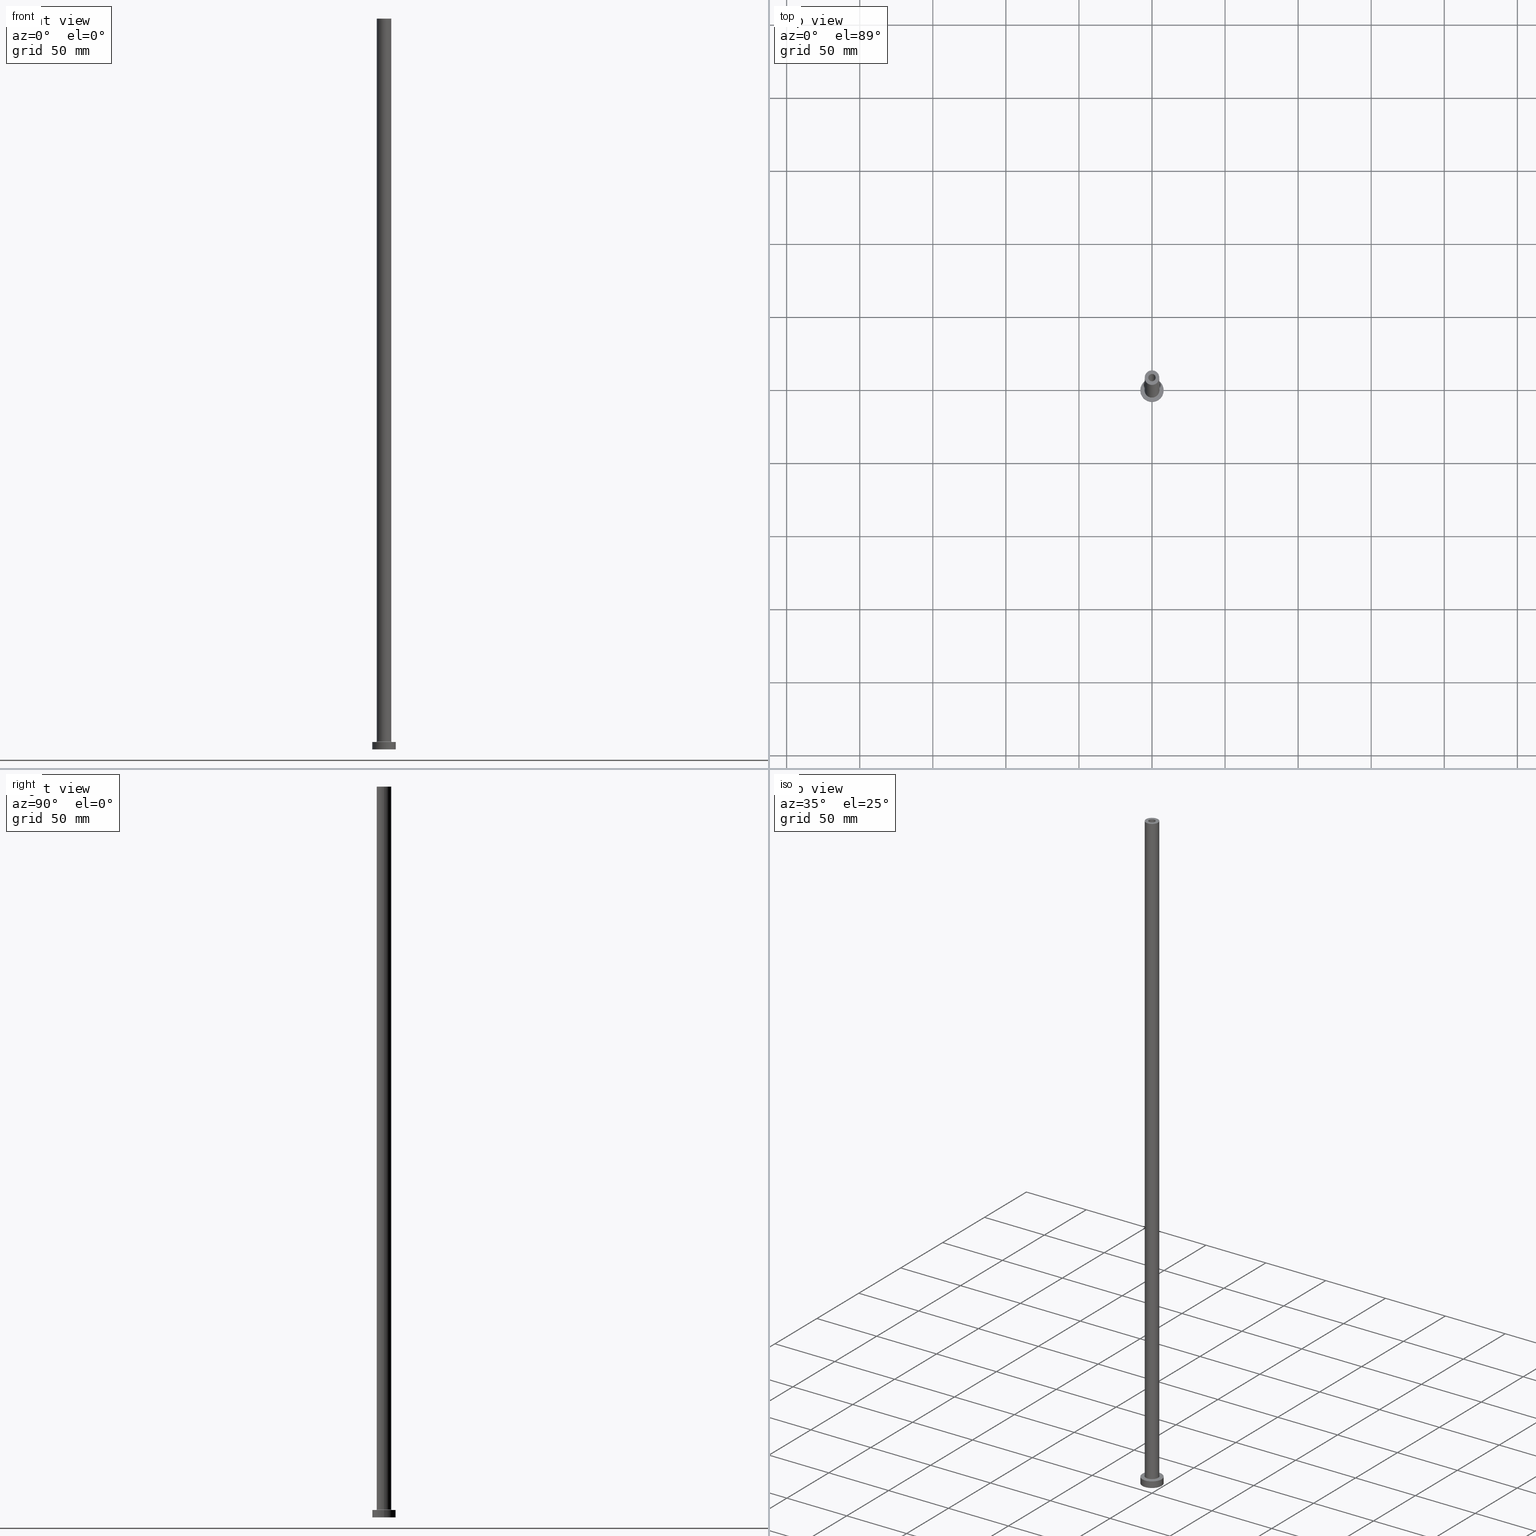
[diagram: canonical four-view strip — front | top / right | iso, engineering-drawing reading convention]
A machine part, canonical four-view strip (front | top / right | iso — engineering-drawing reading convention). The complete STEP part file that produces these views, byte-faithful:
ISO-10303-21;
HEADER;
FILE_DESCRIPTION (( 'STEP AP203' ),
    '1' );
FILE_NAME ('f1df.STEP',
    '2023-02-13T16:57:33',
    ( '' ),
    ( '' ),
    'SwSTEP 2.0',
    'SolidWorks 2019',
    '' );
FILE_SCHEMA (( 'CONFIG_CONTROL_DESIGN' ));
ENDSEC;

DATA;
#1 = CARTESIAN_POINT ( 'NONE',  ( 2.500000000000000000, 3.061616997868382648E-16, 500.0000000000000000 ) ) ;
#2 = VECTOR ( 'NONE', #419, 1000.000000000000000 ) ;
#3 = CARTESIAN_POINT ( 'NONE',  ( 0.000000000000000000, 0.000000000000000000, 0.000000000000000000 ) ) ;
#4 = LOCAL_TIME ( 17, 57, 33.00000000000000000, #62 ) ;
#5 = LINE ( 'NONE', #420, #336 ) ;
#6 = CARTESIAN_POINT ( 'NONE',  ( 0.000000000000000000, 0.000000000000000000, 5.500000000000005329 ) ) ;
#7 = DIRECTION ( 'NONE',  ( 0.000000000000000000, 0.000000000000000000, 1.000000000000000000 ) ) ;
#8 =( NAMED_UNIT ( * ) PLANE_ANGLE_UNIT ( ) SI_UNIT ( $, .RADIAN. ) );
#9 = TOROIDAL_SURFACE ( 'NONE', #208, 5.500000000000000000, 0.5000000000000000000 ) ;
#10 = CC_DESIGN_PERSON_AND_ORGANIZATION_ASSIGNMENT ( #229, #260, ( #411 ) ) ;
#11 = DIRECTION ( 'NONE',  ( 0.000000000000000000, 0.000000000000000000, 1.000000000000000000 ) ) ;
#12 = COORDINATED_UNIVERSAL_TIME_OFFSET ( 1, 0, .AHEAD. ) ;
#13 = VERTEX_POINT ( 'NONE', #1 ) ;
#14 = CIRCLE ( 'NONE', #326, 5.000000000000000000 ) ;
#15 = VERTEX_POINT ( 'NONE', #176 ) ;
#16 = EDGE_LOOP ( 'NONE', ( #294, #287 ) ) ;
#17 = ORIENTED_EDGE ( 'NONE', *, *, #68, .T. ) ;
#18 = VERTEX_POINT ( 'NONE', #275 ) ;
#19 = DIRECTION ( 'NONE',  ( -0.000000000000000000, -0.000000000000000000, -1.000000000000000000 ) ) ;
#20 = CARTESIAN_POINT ( 'NONE',  ( 0.000000000000000000, 0.000000000000000000, 462.4953318805773961 ) ) ;
#21 = CARTESIAN_POINT ( 'NONE',  ( 0.000000000000000000, 0.000000000000000000, 500.0000000000000000 ) ) ;
#22 = APPROVAL_STATUS ( 'not_yet_approved' ) ;
#23 = EDGE_CURVE ( 'NONE', #48, #125, #61, .T. ) ;
#24 = CARTESIAN_POINT ( 'NONE',  ( 2.649999999999999911, 3.245314017740485962E-16, 455.0000000000000000 ) ) ;
#25 = FACE_OUTER_BOUND ( 'NONE', #375, .T. ) ;
#26 = LOCAL_TIME ( 17, 57, 33.00000000000000000, #12 ) ;
#27 = EDGE_CURVE ( 'NONE', #158, #150, #88, .T. ) ;
#28 = DIRECTION ( 'NONE',  ( 1.000000000000000000, 0.000000000000000000, 0.000000000000000000 ) ) ;
#29 = EDGE_CURVE ( 'NONE', #150, #158, #147, .T. ) ;
#30 = LINE ( 'NONE', #425, #201 ) ;
#31 = ORIENTED_EDGE ( 'NONE', *, *, #166, .F. ) ;
#32 = FACE_OUTER_BOUND ( 'NONE', #457, .T. ) ;
#33 =( NAMED_UNIT ( * ) SI_UNIT ( $, .STERADIAN. ) SOLID_ANGLE_UNIT ( ) );
#34 = CARTESIAN_POINT ( 'NONE',  ( 0.000000000000000000, 0.000000000000000000, 455.0000000000000000 ) ) ;
#35 = CARTESIAN_POINT ( 'NONE',  ( 0.000000000000000000, 0.000000000000000000, 5.500000000000005329 ) ) ;
#36 = FACE_OUTER_BOUND ( 'NONE', #310, .T. ) ;
#37 = ORIENTED_EDGE ( 'NONE', *, *, #216, .F. ) ;
#38 = AXIS2_PLACEMENT_3D ( 'NONE', #103, #246, #212 ) ;
#39 = APPROVAL_PERSON_ORGANIZATION ( #342, #427, #231 ) ;
#40 = DIRECTION ( 'NONE',  ( 1.000000000000000000, 0.000000000000000000, 0.000000000000000000 ) ) ;
#41 = PERSON_AND_ORGANIZATION ( #257, #214 ) ;
#42 = DIRECTION ( 'NONE',  ( 1.000000000000000000, 0.000000000000000000, 0.000000000000000000 ) ) ;
#43 = PERSON_AND_ORGANIZATION_ROLE ( 'creator' ) ;
#44 = VERTEX_POINT ( 'NONE', #75 ) ;
#45 = EDGE_LOOP ( 'NONE', ( #224, #334 ) ) ;
#46 = CARTESIAN_POINT ( 'NONE',  ( 2.500000000000000000, 3.061616997868382648E-16, 455.0000000000000000 ) ) ;
#47 = PERSON_AND_ORGANIZATION ( #257, #214 ) ;
#48 = VERTEX_POINT ( 'NONE', #140 ) ;
#49 = AXIS2_PLACEMENT_3D ( 'NONE', #280, #319, #355 ) ;
#50 = APPROVAL ( #113, 'NEUR�EN�' ) ;
#51 = ORIENTED_EDGE ( 'NONE', *, *, #407, .T. ) ;
#52 = DIRECTION ( 'NONE',  ( 1.000000000000000000, 0.000000000000000000, 0.000000000000000000 ) ) ;
#53 = ORIENTED_EDGE ( 'NONE', *, *, #68, .F. ) ;
#54 = ORIENTED_EDGE ( 'NONE', *, *, #193, .T. ) ;
#55 = CARTESIAN_POINT ( 'NONE',  ( -8.000000000000000000, 0.000000000000000000, 5.000000000000000000 ) ) ;
#56 = DIRECTION ( 'NONE',  ( -1.000000000000000000, 0.000000000000000000, 0.000000000000000000 ) ) ;
#57 = CALENDAR_DATE ( 2023, 13, 2 ) ;
#58 = CARTESIAN_POINT ( 'NONE',  ( 0.000000000000000000, 0.000000000000000000, 500.0000000000000000 ) ) ;
#59 = AXIS2_PLACEMENT_3D ( 'NONE', #379, #340, #305 ) ;
#60 = CALENDAR_DATE ( 2023, 13, 2 ) ;
#61 = CIRCLE ( 'NONE', #283, 5.500000000000000000 ) ;
#62 = COORDINATED_UNIVERSAL_TIME_OFFSET ( 1, 0, .AHEAD. ) ;
#63 = DATE_AND_TIME ( #57, #4 ) ;
#64 = AXIS2_PLACEMENT_3D ( 'NONE', #21, #304, #163 ) ;
#65 = CC_DESIGN_PERSON_AND_ORGANIZATION_ASSIGNMENT ( #333, #357, ( #84 ) ) ;
#66 =( GEOMETRIC_REPRESENTATION_CONTEXT ( 3 ) GLOBAL_UNCERTAINTY_ASSIGNED_CONTEXT ( ( #309 ) ) GLOBAL_UNIT_ASSIGNED_CONTEXT ( ( #349, #8, #33 ) ) REPRESENTATION_CONTEXT ( 'NONE', 'WORKASPACE' ) );
#67 = DIRECTION ( 'NONE',  ( -1.000000000000000000, 0.000000000000000000, 0.000000000000000000 ) ) ;
#68 = EDGE_CURVE ( 'NONE', #44, #292, #314, .T. ) ;
#69 = ORIENTED_EDGE ( 'NONE', *, *, #384, .T. ) ;
#70 = DIRECTION ( 'NONE',  ( 0.000000000000000000, 0.000000000000000000, -1.000000000000000000 ) ) ;
#71 = DIRECTION ( 'NONE',  ( 1.000000000000000000, 0.000000000000000000, 0.000000000000000000 ) ) ;
#72 = ORIENTED_EDGE ( 'NONE', *, *, #190, .F. ) ;
#73 = CARTESIAN_POINT ( 'NONE',  ( -2.500000000000000000, 0.000000000000000000, 500.0000000000000000 ) ) ;
#74 = VERTEX_POINT ( 'NONE', #146 ) ;
#75 = CARTESIAN_POINT ( 'NONE',  ( 5.000000000000000000, 6.123233995736766282E-16, 5.500000000000005329 ) ) ;
#76 = AXIS2_PLACEMENT_3D ( 'NONE', #236, #104, #239 ) ;
#77 = CARTESIAN_POINT ( 'NONE',  ( 0.000000000000000000, 0.000000000000000000, 5.000000000000000000 ) ) ;
#78 = ORIENTED_EDGE ( 'NONE', *, *, #407, .F. ) ;
#79 = ORIENTED_EDGE ( 'NONE', *, *, #145, .F. ) ;
#80 = ADVANCED_FACE ( 'NONE', ( #238, #32 ), #281, .T. ) ;
#81 = ADVANCED_FACE ( 'NONE', ( #241, #213 ), #187, .F. ) ;
#82 = EDGE_LOOP ( 'NONE', ( #31, #363, #399, #378 ) ) ;
#83 = AXIS2_PLACEMENT_3D ( 'NONE', #92, #232, #346 ) ;
#84 = PRODUCT_DEFINITION_FORMATION_WITH_SPECIFIED_SOURCE ( 'LIBOVOLN�', '', #251, .NOT_KNOWN. ) ;
#85 = APPROVAL_ROLE ( '' ) ;
#86 = ORIENTED_EDGE ( 'NONE', *, *, #216, .T. ) ;
#87 = DIRECTION ( 'NONE',  ( 1.000000000000000000, 0.000000000000000000, -0.000000000000000000 ) ) ;
#88 = CIRCLE ( 'NONE', #389, 2.649999999999999911 ) ;
#89 = APPROVAL_DATE_TIME ( #338, #427 ) ;
#90 = CC_DESIGN_PERSON_AND_ORGANIZATION_ASSIGNMENT ( #410, #153, ( #251 ) ) ;
#91 = PERSON_AND_ORGANIZATION_ROLE ( 'design_supplier' ) ;
#92 = CARTESIAN_POINT ( 'NONE',  ( 0.000000000000000000, 0.000000000000000000, 5.000000000000000000 ) ) ;
#93 = ADVANCED_FACE ( 'NONE', ( #144 ), #9, .F. ) ;
#94 = DIRECTION ( 'NONE',  ( 1.000000000000000000, 0.000000000000000000, 0.000000000000000000 ) ) ;
#95 = ADVANCED_FACE ( 'NONE', ( #243 ), #180, .F. ) ;
#96 = VECTOR ( 'NONE', #359, 1000.000000000000000 ) ;
#97 = CC_DESIGN_SECURITY_CLASSIFICATION ( #411, ( #84 ) ) ;
#98 = DIRECTION ( 'NONE',  ( -0.000000000000000000, -0.000000000000000000, -1.000000000000000000 ) ) ;
#99 = ORIENTED_EDGE ( 'NONE', *, *, #134, .T. ) ;
#100 = ADVANCED_FACE ( 'NONE', ( #197 ), #259, .F. ) ;
#101 = AXIS2_PLACEMENT_3D ( 'NONE', #330, #228, #56 ) ;
#102 = CARTESIAN_POINT ( 'NONE',  ( 0.000000000000000000, 0.000000000000000000, 5.000000000000000000 ) ) ;
#103 = CARTESIAN_POINT ( 'NONE',  ( 0.000000000000000000, 0.000000000000000000, 0.000000000000000000 ) ) ;
#104 = DIRECTION ( 'NONE',  ( 0.000000000000000000, 0.000000000000000000, 1.000000000000000000 ) ) ;
#105 = LINE ( 'NONE', #274, #316 ) ;
#106 = APPROVAL_PERSON_ORGANIZATION ( #436, #460, #430 ) ;
#107 = DIRECTION ( 'NONE',  ( -0.000000000000000000, -0.000000000000000000, -1.000000000000000000 ) ) ;
#108 = PLANE ( 'NONE',  #422 ) ;
#109 = CARTESIAN_POINT ( 'NONE',  ( 0.000000000000000000, 0.000000000000000000, 455.0000000000000000 ) ) ;
#110 = PRODUCT_RELATED_PRODUCT_CATEGORY ( 'detail', '', ( #251 ) ) ;
#111 = LINE ( 'NONE', #181, #96 ) ;
#112 = CARTESIAN_POINT ( 'NONE',  ( 0.000000000000000000, 0.000000000000000000, 5.500000000000005329 ) ) ;
#113 = APPROVAL_STATUS ( 'not_yet_approved' ) ;
#114 = VERTEX_POINT ( 'NONE', #46 ) ;
#115 = ORIENTED_EDGE ( 'NONE', *, *, #226, .T. ) ;
#116 = CARTESIAN_POINT ( 'NONE',  ( 0.000000000000000000, 0.000000000000000000, 455.0000000000000000 ) ) ;
#117 = PRODUCT_DEFINITION_SHAPE ( 'NONE', 'NONE',  #444 ) ;
#118 = APPROVAL_DATE_TIME ( #248, #50 ) ;
#119 = ORIENTED_EDGE ( 'NONE', *, *, #193, .F. ) ;
#120 = AXIS2_PLACEMENT_3D ( 'NONE', #34, #182, #321 ) ;
#121 = APPLICATION_PROTOCOL_DEFINITION ( 'international standard', 'config_control_design', 1994, #131 ) ;
#122 = ORIENTED_EDGE ( 'NONE', *, *, #29, .T. ) ;
#123 = LOCAL_TIME ( 17, 57, 33.00000000000000000, #130 ) ;
#124 = COORDINATED_UNIVERSAL_TIME_OFFSET ( 1, 0, .AHEAD. ) ;
#125 = VERTEX_POINT ( 'NONE', #443 ) ;
#126 = CARTESIAN_POINT ( 'NONE',  ( -5.500000000000000000, 6.735557395310442023E-16, 5.500000000000005329 ) ) ;
#127 = DIRECTION ( 'NONE',  ( -1.000000000000000000, 0.000000000000000000, 0.000000000000000000 ) ) ;
#128 = AXIS2_PLACEMENT_3D ( 'NONE', #325, #351, #94 ) ;
#129 = AXIS2_PLACEMENT_3D ( 'NONE', #454, #98, #67 ) ;
#130 = COORDINATED_UNIVERSAL_TIME_OFFSET ( 1, 0, .AHEAD. ) ;
#131 = APPLICATION_CONTEXT ( 'configuration controlled 3d designs of mechanical parts and assemblies' ) ;
#132 = DIRECTION ( 'NONE',  ( 1.000000000000000000, 0.000000000000000000, -0.000000000000000000 ) ) ;
#133 = CARTESIAN_POINT ( 'NONE',  ( 8.000000000000000000, 9.797174393178825657E-16, 5.000000000000000000 ) ) ;
#134 = EDGE_CURVE ( 'NONE', #292, #125, #418, .T. ) ;
#135 = AXIS2_PLACEMENT_3D ( 'NONE', #312, #141, #276 ) ;
#136 = CARTESIAN_POINT ( 'NONE',  ( -2.500000000000000000, 0.000000000000000000, 500.0000000000000000 ) ) ;
#137 = ADVANCED_BREP_SHAPE_REPRESENTATION ( 'f1df', ( #385, #428 ), #66 ) ;
#138 = CARTESIAN_POINT ( 'NONE',  ( 5.500000000000000000, 0.000000000000000000, 5.500000000000005329 ) ) ;
#139 = CARTESIAN_POINT ( 'NONE',  ( 8.000000000000000000, 9.797174393178825657E-16, 0.000000000000000000 ) ) ;
#140 = CARTESIAN_POINT ( 'NONE',  ( 5.500000000000000000, 0.000000000000000000, 5.000000000000002665 ) ) ;
#141 = DIRECTION ( 'NONE',  ( 0.000000000000000000, 0.000000000000000000, 1.000000000000000000 ) ) ;
#142 = CIRCLE ( 'NONE', #135, 2.500000000000000000 ) ;
#143 = LOCAL_TIME ( 17, 57, 33.00000000000000000, #225 ) ;
#144 = FACE_OUTER_BOUND ( 'NONE', #348, .T. ) ;
#145 = EDGE_CURVE ( 'NONE', #268, #114, #235, .T. ) ;
#146 = CARTESIAN_POINT ( 'NONE',  ( 2.649999999999999911, 3.245314017740485962E-16, 0.000000000000000000 ) ) ;
#147 = CIRCLE ( 'NONE', #345, 2.649999999999999911 ) ;
#148 = ORIENTED_EDGE ( 'NONE', *, *, #29, .F. ) ;
#149 = EDGE_CURVE ( 'NONE', #158, #18, #272, .T. ) ;
#150 = VERTEX_POINT ( 'NONE', #24 ) ;
#151 = AXIS2_PLACEMENT_3D ( 'NONE', #169, #19, #373 ) ;
#152 = DIRECTION ( 'NONE',  ( -1.000000000000000000, 0.000000000000000000, 0.000000000000000000 ) ) ;
#153 = PERSON_AND_ORGANIZATION_ROLE ( 'design_owner' ) ;
#154 = ORIENTED_EDGE ( 'NONE', *, *, #205, .T. ) ;
#155 = ADVANCED_FACE ( 'NONE', ( #441 ), #299, .F. ) ;
#156 = CALENDAR_DATE ( 2023, 13, 2 ) ;
#157 = EDGE_LOOP ( 'NONE', ( #437, #215, #54, #37 ) ) ;
#158 = VERTEX_POINT ( 'NONE', #447 ) ;
#159 = CIRCLE ( 'NONE', #128, 2.500000000000000000 ) ;
#160 = LINE ( 'NONE', #73, #341 ) ;
#161 = CIRCLE ( 'NONE', #271, 0.5000000000000004441 ) ;
#162 = DIRECTION ( 'NONE',  ( 0.000000000000000000, 0.000000000000000000, 1.000000000000000000 ) ) ;
#163 = DIRECTION ( 'NONE',  ( -1.000000000000000000, 0.000000000000000000, 0.000000000000000000 ) ) ;
#164 = FACE_OUTER_BOUND ( 'NONE', #234, .T. ) ;
#165 = DIRECTION ( 'NONE',  ( 0.000000000000000000, 0.000000000000000000, 1.000000000000000000 ) ) ;
#166 = EDGE_CURVE ( 'NONE', #370, #44, #339, .T. ) ;
#167 = CIRCLE ( 'NONE', #432, 8.000000000000000000 ) ;
#168 = CYLINDRICAL_SURFACE ( 'NONE', #83, 8.000000000000000000 ) ;
#169 = CARTESIAN_POINT ( 'NONE',  ( 0.000000000000000000, 0.000000000000000000, 500.0000000000000000 ) ) ;
#170 = ADVANCED_FACE ( 'NONE', ( #374 ), #168, .T. ) ;
#171 = DIRECTION ( 'NONE',  ( 1.000000000000000000, 0.000000000000000000, 0.000000000000000000 ) ) ;
#172 = DIRECTION ( 'NONE',  ( 1.000000000000000000, 0.000000000000000000, 0.000000000000000000 ) ) ;
#173 = AXIS2_PLACEMENT_3D ( 'NONE', #317, #397, #455 ) ;
#174 = CARTESIAN_POINT ( 'NONE',  ( 0.000000000000000000, 0.000000000000000000, 0.000000000000000000 ) ) ;
#175 = EDGE_LOOP ( 'NONE', ( #188, #99, #258, #409 ) ) ;
#176 = CARTESIAN_POINT ( 'NONE',  ( 8.000000000000000000, 9.797174393178825657E-16, 5.000000000000000000 ) ) ;
#177 = DESIGN_CONTEXT ( 'detailed design', #131, 'design' ) ;
#178 = EDGE_LOOP ( 'NONE', ( #366, #86 ) ) ;
#179 = EDGE_CURVE ( 'NONE', #223, #370, #380, .T. ) ;
#180 = CYLINDRICAL_SURFACE ( 'NONE', #101, 2.649999999999999911 ) ;
#181 = CARTESIAN_POINT ( 'NONE',  ( -8.000000000000000000, 0.000000000000000000, 5.000000000000000000 ) ) ;
#182 = DIRECTION ( 'NONE',  ( 0.000000000000000000, 0.000000000000000000, 1.000000000000000000 ) ) ;
#183 = TOROIDAL_SURFACE ( 'NONE', #293, 5.500000000000000000, 0.5000000000000000000 ) ;
#184 = CC_DESIGN_APPROVAL ( #427, ( #411 ) ) ;
#185 = ORIENTED_EDGE ( 'NONE', *, *, #453, .T. ) ;
#186 = CARTESIAN_POINT ( 'NONE',  ( 0.000000000000000000, 0.000000000000000000, 455.0000000000000000 ) ) ;
#187 = PLANE ( 'NONE',  #120 ) ;
#188 = ORIENTED_EDGE ( 'NONE', *, *, #337, .F. ) ;
#189 = DIRECTION ( 'NONE',  ( -1.000000000000000000, 1.224646799147351482E-16, 0.000000000000000000 ) ) ;
#190 = EDGE_CURVE ( 'NONE', #223, #292, #5, .T. ) ;
#191 = ORIENTED_EDGE ( 'NONE', *, *, #360, .F. ) ;
#192 = AXIS2_PLACEMENT_3D ( 'NONE', #77, #218, #358 ) ;
#193 = EDGE_CURVE ( 'NONE', #362, #268, #160, .T. ) ;
#194 = EDGE_LOOP ( 'NONE', ( #286, #148 ) ) ;
#195 = CC_DESIGN_DATE_AND_TIME_ASSIGNMENT ( #331, #285, ( #444 ) ) ;
#196 = ORIENTED_EDGE ( 'NONE', *, *, #134, .F. ) ;
#197 = FACE_OUTER_BOUND ( 'NONE', #290, .T. ) ;
#198 = SHAPE_DEFINITION_REPRESENTATION ( #117, #137 ) ;
#199 = FACE_BOUND ( 'NONE', #253, .T. ) ;
#200 = CIRCLE ( 'NONE', #59, 5.500000000000000000 ) ;
#201 = VECTOR ( 'NONE', #207, 1000.000000000000000 ) ;
#202 = AXIS2_PLACEMENT_3D ( 'NONE', #3, #165, #390 ) ;
#203 = CC_DESIGN_APPROVAL ( #50, ( #84 ) ) ;
#204 = DIRECTION ( 'NONE',  ( 0.000000000000000000, 0.000000000000000000, 1.000000000000000000 ) ) ;
#205 = EDGE_CURVE ( 'NONE', #74, #18, #421, .T. ) ;
#206 = CARTESIAN_POINT ( 'NONE',  ( -8.000000000000000000, 0.000000000000000000, 0.000000000000000000 ) ) ;
#207 = DIRECTION ( 'NONE',  ( 0.000000000000000000, 0.000000000000000000, -1.000000000000000000 ) ) ;
#208 = AXIS2_PLACEMENT_3D ( 'NONE', #112, #404, #350 ) ;
#209 = VECTOR ( 'NONE', #270, 1000.000000000000000 ) ;
#210 = ORIENTED_EDGE ( 'NONE', *, *, #273, .T. ) ;
#211 = DIRECTION ( 'NONE',  ( 1.000000000000000000, 0.000000000000000000, 0.000000000000000000 ) ) ;
#212 = DIRECTION ( 'NONE',  ( 1.000000000000000000, 0.000000000000000000, 0.000000000000000000 ) ) ;
#213 = FACE_OUTER_BOUND ( 'NONE', #194, .T. ) ;
#214 = ORGANIZATION ( 'NEUR�EN�', 'NEUR�EN�', '' ) ;
#215 = ORIENTED_EDGE ( 'NONE', *, *, #279, .T. ) ;
#216 = EDGE_CURVE ( 'NONE', #114, #268, #142, .T. ) ;
#217 = DIRECTION ( 'NONE',  ( 0.000000000000000000, 0.000000000000000000, -1.000000000000000000 ) ) ;
#218 = DIRECTION ( 'NONE',  ( 0.000000000000000000, 0.000000000000000000, 1.000000000000000000 ) ) ;
#219 = CALENDAR_DATE ( 2023, 13, 2 ) ;
#220 = ORIENTED_EDGE ( 'NONE', *, *, #226, .F. ) ;
#221 = EDGE_LOOP ( 'NONE', ( #220, #278 ) ) ;
#222 = DIRECTION ( 'NONE',  ( 0.000000000000000000, 0.000000000000000000, 1.000000000000000000 ) ) ;
#223 = VERTEX_POINT ( 'NONE', #396 ) ;
#224 = ORIENTED_EDGE ( 'NONE', *, *, #405, .F. ) ;
#225 = COORDINATED_UNIVERSAL_TIME_OFFSET ( 1, 0, .AHEAD. ) ;
#226 = EDGE_CURVE ( 'NONE', #264, #408, #328, .T. ) ;
#227 = ORIENTED_EDGE ( 'NONE', *, *, #453, .F. ) ;
#228 = DIRECTION ( 'NONE',  ( 0.000000000000000000, 0.000000000000000000, -1.000000000000000000 ) ) ;
#229 = PERSON_AND_ORGANIZATION ( #257, #214 ) ;
#230 = AXIS2_PLACEMENT_3D ( 'NONE', #343, #162, #87 ) ;
#231 = APPROVAL_ROLE ( '' ) ;
#232 = DIRECTION ( 'NONE',  ( -0.000000000000000000, -0.000000000000000000, -1.000000000000000000 ) ) ;
#233 = SECURITY_CLASSIFICATION_LEVEL ( 'unclassified' ) ;
#234 = EDGE_LOOP ( 'NONE', ( #51, #185 ) ) ;
#235 = CIRCLE ( 'NONE', #301, 2.500000000000000000 ) ;
#236 = CARTESIAN_POINT ( 'NONE',  ( 0.000000000000000000, 0.000000000000000000, 500.0000000000000000 ) ) ;
#237 = ORIENTED_EDGE ( 'NONE', *, *, #282, .T. ) ;
#238 = FACE_BOUND ( 'NONE', #16, .T. ) ;
#239 = DIRECTION ( 'NONE',  ( 1.000000000000000000, 0.000000000000000000, 0.000000000000000000 ) ) ;
#240 = DIRECTION ( 'NONE',  ( 0.000000000000000000, -1.000000000000000000, 0.000000000000000000 ) ) ;
#241 = FACE_BOUND ( 'NONE', #178, .T. ) ;
#242 = DIRECTION ( 'NONE',  ( -0.000000000000000000, -0.000000000000000000, -1.000000000000000000 ) ) ;
#243 = FACE_OUTER_BOUND ( 'NONE', #261, .T. ) ;
#244 = APPROVAL_DATE_TIME ( #254, #460 ) ;
#245 = CIRCLE ( 'NONE', #192, 8.000000000000000000 ) ;
#246 = DIRECTION ( 'NONE',  ( -0.000000000000000000, -0.000000000000000000, -1.000000000000000000 ) ) ;
#247 = DIRECTION ( 'NONE',  ( 1.000000000000000000, 0.000000000000000000, 0.000000000000000000 ) ) ;
#248 = DATE_AND_TIME ( #369, #143 ) ;
#249 = ORIENTED_EDGE ( 'NONE', *, *, #327, .F. ) ;
#250 = ORIENTED_EDGE ( 'NONE', *, *, #166, .T. ) ;
#251 = PRODUCT ( 'f1df', 'f1df', '', ( #402 ) ) ;
#252 = EDGE_CURVE ( 'NONE', #15, #408, #450, .T. ) ;
#253 = EDGE_LOOP ( 'NONE', ( #329, #324 ) ) ;
#254 = DATE_AND_TIME ( #219, #393 ) ;
#255 = ORIENTED_EDGE ( 'NONE', *, *, #288, .F. ) ;
#256 = CIRCLE ( 'NONE', #302, 8.000000000000000000 ) ;
#257 = PERSON ( 'NEUR�EN�', 'NEUR�EN�', 'NEUR�EN�', ('NEUR�EN�'), ('NEUR�EN�'), ('NEUR�EN�') ) ;
#258 = ORIENTED_EDGE ( 'NONE', *, *, #23, .F. ) ;
#259 = CYLINDRICAL_SURFACE ( 'NONE', #354, 2.649999999999999911 ) ;
#260 = PERSON_AND_ORGANIZATION_ROLE ( 'classification_officer' ) ;
#261 = EDGE_LOOP ( 'NONE', ( #191, #122, #291, #335 ) ) ;
#262 = CARTESIAN_POINT ( 'NONE',  ( -5.000000000000000000, 0.000000000000000000, 5.500000000000005329 ) ) ;
#263 = CYLINDRICAL_SURFACE ( 'NONE', #49, 5.000000000000000000 ) ;
#264 = VERTEX_POINT ( 'NONE', #206 ) ;
#265 = DIRECTION ( 'NONE',  ( 0.000000000000000000, 0.000000000000000000, 1.000000000000000000 ) ) ;
#266 = AXIS2_PLACEMENT_3D ( 'NONE', #58, #446, #127 ) ;
#267 = ADVANCED_FACE ( 'NONE', ( #306 ), #183, .F. ) ;
#268 = VERTEX_POINT ( 'NONE', #423 ) ;
#269 = FACE_OUTER_BOUND ( 'NONE', #157, .T. ) ;
#270 = DIRECTION ( 'NONE',  ( 0.000000000000000000, 0.000000000000000000, -1.000000000000000000 ) ) ;
#271 = AXIS2_PLACEMENT_3D ( 'NONE', #138, #240, #70 ) ;
#272 = LINE ( 'NONE', #431, #209 ) ;
#273 = EDGE_CURVE ( 'NONE', #415, #264, #111, .T. ) ;
#274 = CARTESIAN_POINT ( 'NONE',  ( 2.500000000000000000, 3.061616997868382648E-16, 500.0000000000000000 ) ) ;
#275 = CARTESIAN_POINT ( 'NONE',  ( -2.649999999999999911, 0.000000000000000000, 0.000000000000000000 ) ) ;
#276 = DIRECTION ( 'NONE',  ( 1.000000000000000000, 0.000000000000000000, 0.000000000000000000 ) ) ;
#277 = CARTESIAN_POINT ( 'NONE',  ( 5.000000000000000000, 6.123233995736766282E-16, 500.0000000000000000 ) ) ;
#278 = ORIENTED_EDGE ( 'NONE', *, *, #394, .F. ) ;
#279 = EDGE_CURVE ( 'NONE', #13, #362, #356, .T. ) ;
#280 = CARTESIAN_POINT ( 'NONE',  ( 0.000000000000000000, 0.000000000000000000, 500.0000000000000000 ) ) ;
#281 = PLANE ( 'NONE',  #438 ) ;
#282 = EDGE_CURVE ( 'NONE', #362, #13, #159, .T. ) ;
#283 = AXIS2_PLACEMENT_3D ( 'NONE', #102, #107, #42 ) ;
#284 = DIRECTION ( 'NONE',  ( 1.000000000000000000, 0.000000000000000000, -0.000000000000000000 ) ) ;
#285 = DATE_TIME_ROLE ( 'creation_date' ) ;
#286 = ORIENTED_EDGE ( 'NONE', *, *, #27, .F. ) ;
#287 = ORIENTED_EDGE ( 'NONE', *, *, #279, .F. ) ;
#288 = EDGE_CURVE ( 'NONE', #125, #48, #200, .T. ) ;
#289 = CC_DESIGN_DATE_AND_TIME_ASSIGNMENT ( #63, #372, ( #411 ) ) ;
#290 = EDGE_LOOP ( 'NONE', ( #439, #440, #154, #388 ) ) ;
#291 = ORIENTED_EDGE ( 'NONE', *, *, #149, .T. ) ;
#292 = VERTEX_POINT ( 'NONE', #262 ) ;
#293 = AXIS2_PLACEMENT_3D ( 'NONE', #35, #7, #40 ) ;
#294 = ORIENTED_EDGE ( 'NONE', *, *, #282, .F. ) ;
#295 = CARTESIAN_POINT ( 'NONE',  ( 0.000000000000000000, 0.000000000000000000, 500.0000000000000000 ) ) ;
#296 = DIRECTION ( 'NONE',  ( 0.000000000000000000, 0.000000000000000000, -1.000000000000000000 ) ) ;
#297 = ORIENTED_EDGE ( 'NONE', *, *, #252, .T. ) ;
#298 = PLANE ( 'NONE',  #230 ) ;
#299 = CYLINDRICAL_SURFACE ( 'NONE', #64, 2.500000000000000000 ) ;
#300 = EDGE_LOOP ( 'NONE', ( #412, #78, #210, #115 ) ) ;
#301 = AXIS2_PLACEMENT_3D ( 'NONE', #116, #222, #52 ) ;
#302 = AXIS2_PLACEMENT_3D ( 'NONE', #424, #313, #459 ) ;
#303 = ADVANCED_FACE ( 'NONE', ( #25 ), #371, .T. ) ;
#304 = DIRECTION ( 'NONE',  ( 0.000000000000000000, 0.000000000000000000, -1.000000000000000000 ) ) ;
#305 = DIRECTION ( 'NONE',  ( 1.000000000000000000, 0.000000000000000000, 0.000000000000000000 ) ) ;
#306 = FACE_OUTER_BOUND ( 'NONE', #175, .T. ) ;
#307 = ADVANCED_FACE ( 'NONE', ( #199, #164 ), #298, .T. ) ;
#308 = DIRECTION ( 'NONE',  ( 0.000000000000000000, 0.000000000000000000, -1.000000000000000000 ) ) ;
#309 = UNCERTAINTY_MEASURE_WITH_UNIT (LENGTH_MEASURE( 1.000000000000000082E-05 ), #349, 'distance_accuracy_value', 'NONE');
#310 = EDGE_LOOP ( 'NONE', ( #227, #297, #368, #406 ) ) ;
#311 = DIRECTION ( 'NONE',  ( 0.000000000000000000, 0.000000000000000000, 1.000000000000000000 ) ) ;
#312 = CARTESIAN_POINT ( 'NONE',  ( 0.000000000000000000, 0.000000000000000000, 455.0000000000000000 ) ) ;
#313 = DIRECTION ( 'NONE',  ( 0.000000000000000000, 0.000000000000000000, 1.000000000000000000 ) ) ;
#314 = CIRCLE ( 'NONE', #414, 5.000000000000000000 ) ;
#315 = FACE_BOUND ( 'NONE', #45, .T. ) ;
#316 = VECTOR ( 'NONE', #308, 1000.000000000000000 ) ;
#317 = CARTESIAN_POINT ( 'NONE',  ( 0.000000000000000000, 0.000000000000000000, 5.500000000000005329 ) ) ;
#318 = DIRECTION ( 'NONE',  ( 1.000000000000000000, 0.000000000000000000, 0.000000000000000000 ) ) ;
#319 = DIRECTION ( 'NONE',  ( -0.000000000000000000, -0.000000000000000000, -1.000000000000000000 ) ) ;
#320 = DIRECTION ( 'NONE',  ( 1.000000000000000000, 0.000000000000000000, 0.000000000000000000 ) ) ;
#321 = DIRECTION ( 'NONE',  ( 1.000000000000000000, 0.000000000000000000, -0.000000000000000000 ) ) ;
#322 = APPROVAL_STATUS ( 'not_yet_approved' ) ;
#323 = ADVANCED_FACE ( 'NONE', ( #269 ), #417, .F. ) ;
#324 = ORIENTED_EDGE ( 'NONE', *, *, #288, .T. ) ;
#325 = CARTESIAN_POINT ( 'NONE',  ( 0.000000000000000000, 0.000000000000000000, 500.0000000000000000 ) ) ;
#326 = AXIS2_PLACEMENT_3D ( 'NONE', #295, #265, #28 ) ;
#327 = EDGE_CURVE ( 'NONE', #370, #223, #14, .T. ) ;
#328 = CIRCLE ( 'NONE', #202, 8.000000000000000000 ) ;
#329 = ORIENTED_EDGE ( 'NONE', *, *, #23, .T. ) ;
#330 = CARTESIAN_POINT ( 'NONE',  ( 0.000000000000000000, 0.000000000000000000, 462.4953318805773961 ) ) ;
#331 = DATE_AND_TIME ( #156, #26 ) ;
#332 = ORIENTED_EDGE ( 'NONE', *, *, #395, .T. ) ;
#333 = PERSON_AND_ORGANIZATION ( #257, #214 ) ;
#334 = ORIENTED_EDGE ( 'NONE', *, *, #205, .F. ) ;
#335 = ORIENTED_EDGE ( 'NONE', *, *, #405, .T. ) ;
#336 = VECTOR ( 'NONE', #242, 1000.000000000000000 ) ;
#337 = EDGE_CURVE ( 'NONE', #292, #44, #392, .T. ) ;
#338 = DATE_AND_TIME ( #60, #123 ) ;
#339 = LINE ( 'NONE', #445, #347 ) ;
#340 = DIRECTION ( 'NONE',  ( -0.000000000000000000, -0.000000000000000000, -1.000000000000000000 ) ) ;
#341 = VECTOR ( 'NONE', #217, 1000.000000000000000 ) ;
#342 = PERSON_AND_ORGANIZATION ( #257, #214 ) ;
#343 = CARTESIAN_POINT ( 'NONE',  ( 0.000000000000000000, 0.000000000000000000, 5.000000000000000000 ) ) ;
#344 = DIRECTION ( 'NONE',  ( 0.000000000000000000, 0.000000000000000000, 1.000000000000000000 ) ) ;
#345 = AXIS2_PLACEMENT_3D ( 'NONE', #109, #311, #211 ) ;
#346 = DIRECTION ( 'NONE',  ( -1.000000000000000000, 0.000000000000000000, 0.000000000000000000 ) ) ;
#347 = VECTOR ( 'NONE', #416, 1000.000000000000000 ) ;
#348 = EDGE_LOOP ( 'NONE', ( #196, #53, #332, #255 ) ) ;
#349 =( LENGTH_UNIT ( ) NAMED_UNIT ( * ) SI_UNIT ( .MILLI., .METRE. ) );
#350 = DIRECTION ( 'NONE',  ( 1.000000000000000000, 0.000000000000000000, 0.000000000000000000 ) ) ;
#351 = DIRECTION ( 'NONE',  ( 0.000000000000000000, 0.000000000000000000, 1.000000000000000000 ) ) ;
#352 = DIRECTION ( 'NONE',  ( 0.000000000000000000, 0.000000000000000000, 1.000000000000000000 ) ) ;
#353 = ADVANCED_FACE ( 'NONE', ( #36 ), #383, .T. ) ;
#354 = AXIS2_PLACEMENT_3D ( 'NONE', #20, #296, #152 ) ;
#355 = DIRECTION ( 'NONE',  ( -1.000000000000000000, 0.000000000000000000, 0.000000000000000000 ) ) ;
#356 = CIRCLE ( 'NONE', #400, 2.500000000000000000 ) ;
#357 = PERSON_AND_ORGANIZATION_ROLE ( 'creator' ) ;
#358 = DIRECTION ( 'NONE',  ( 1.000000000000000000, 0.000000000000000000, 0.000000000000000000 ) ) ;
#359 = DIRECTION ( 'NONE',  ( -0.000000000000000000, -0.000000000000000000, -1.000000000000000000 ) ) ;
#360 = EDGE_CURVE ( 'NONE', #150, #74, #30, .T. ) ;
#361 = PERSON_AND_ORGANIZATION ( #257, #214 ) ;
#362 = VERTEX_POINT ( 'NONE', #136 ) ;
#363 = ORIENTED_EDGE ( 'NONE', *, *, #179, .F. ) ;
#364 = DIRECTION ( 'NONE',  ( 1.224646799147353207E-16, 1.000000000000000000, -0.000000000000000000 ) ) ;
#365 = CLOSED_SHELL ( 'NONE', ( #155, #100, #267, #303, #353, #170, #307, #403, #442, #80, #93, #95, #81, #323 ) ) ;
#366 = ORIENTED_EDGE ( 'NONE', *, *, #145, .T. ) ;
#367 = CC_DESIGN_APPROVAL ( #460, ( #444 ) ) ;
#368 = ORIENTED_EDGE ( 'NONE', *, *, #394, .T. ) ;
#369 = CALENDAR_DATE ( 2023, 13, 2 ) ;
#370 = VERTEX_POINT ( 'NONE', #277 ) ;
#371 = CYLINDRICAL_SURFACE ( 'NONE', #151, 5.000000000000000000 ) ;
#372 = DATE_TIME_ROLE ( 'classification_date' ) ;
#373 = DIRECTION ( 'NONE',  ( -1.000000000000000000, 0.000000000000000000, 0.000000000000000000 ) ) ;
#374 = FACE_OUTER_BOUND ( 'NONE', #300, .T. ) ;
#375 = EDGE_LOOP ( 'NONE', ( #249, #250, #17, #72 ) ) ;
#376 = CC_DESIGN_PERSON_AND_ORGANIZATION_ASSIGNMENT ( #361, #43, ( #444 ) ) ;
#377 = APPLICATION_CONTEXT ( 'configuration controlled 3d designs of mechanical parts and assemblies' ) ;
#378 = ORIENTED_EDGE ( 'NONE', *, *, #337, .T. ) ;
#379 = CARTESIAN_POINT ( 'NONE',  ( 0.000000000000000000, 0.000000000000000000, 5.000000000000000000 ) ) ;
#380 = CIRCLE ( 'NONE', #76, 5.000000000000000000 ) ;
#381 = APPROVAL_PERSON_ORGANIZATION ( #47, #50, #85 ) ;
#382 = CARTESIAN_POINT ( 'NONE',  ( 0.000000000000000000, 0.000000000000000000, 0.000000000000000000 ) ) ;
#383 = CYLINDRICAL_SURFACE ( 'NONE', #129, 8.000000000000000000 ) ;
#384 = EDGE_CURVE ( 'NONE', #13, #114, #105, .T. ) ;
#385 = MANIFOLD_SOLID_BREP ( 'Odebrat vysunut�m4', #365 ) ;
#386 = CARTESIAN_POINT ( 'NONE',  ( 0.000000000000000000, 0.000000000000000000, 0.000000000000000000 ) ) ;
#387 = APPLICATION_PROTOCOL_DEFINITION ( 'international standard', 'config_control_design', 1994, #377 ) ;
#388 = ORIENTED_EDGE ( 'NONE', *, *, #149, .F. ) ;
#389 = AXIS2_PLACEMENT_3D ( 'NONE', #186, #352, #318 ) ;
#390 = DIRECTION ( 'NONE',  ( 1.000000000000000000, 0.000000000000000000, 0.000000000000000000 ) ) ;
#391 = CARTESIAN_POINT ( 'NONE',  ( 0.000000000000000000, 0.000000000000000000, 500.0000000000000000 ) ) ;
#392 = CIRCLE ( 'NONE', #173, 5.000000000000000000 ) ;
#393 = LOCAL_TIME ( 17, 57, 33.00000000000000000, #124 ) ;
#394 = EDGE_CURVE ( 'NONE', #408, #264, #167, .T. ) ;
#395 = EDGE_CURVE ( 'NONE', #44, #48, #161, .T. ) ;
#396 = CARTESIAN_POINT ( 'NONE',  ( -5.000000000000000000, 0.000000000000000000, 500.0000000000000000 ) ) ;
#397 = DIRECTION ( 'NONE',  ( 0.000000000000000000, 0.000000000000000000, 1.000000000000000000 ) ) ;
#398 = FACE_OUTER_BOUND ( 'NONE', #82, .T. ) ;
#399 = ORIENTED_EDGE ( 'NONE', *, *, #190, .T. ) ;
#400 = AXIS2_PLACEMENT_3D ( 'NONE', #433, #11, #247 ) ;
#401 = CIRCLE ( 'NONE', #448, 2.649999999999999911 ) ;
#402 = MECHANICAL_CONTEXT ( 'NONE', #377, 'mechanical' ) ;
#403 = ADVANCED_FACE ( 'NONE', ( #315, #429 ), #108, .F. ) ;
#404 = DIRECTION ( 'NONE',  ( 0.000000000000000000, 0.000000000000000000, 1.000000000000000000 ) ) ;
#405 = EDGE_CURVE ( 'NONE', #18, #74, #401, .T. ) ;
#406 = ORIENTED_EDGE ( 'NONE', *, *, #273, .F. ) ;
#407 = EDGE_CURVE ( 'NONE', #415, #15, #256, .T. ) ;
#408 = VERTEX_POINT ( 'NONE', #139 ) ;
#409 = ORIENTED_EDGE ( 'NONE', *, *, #395, .F. ) ;
#410 = PERSON_AND_ORGANIZATION ( #257, #214 ) ;
#411 = SECURITY_CLASSIFICATION ( '', '', #233 ) ;
#412 = ORIENTED_EDGE ( 'NONE', *, *, #252, .F. ) ;
#413 = CC_DESIGN_PERSON_AND_ORGANIZATION_ASSIGNMENT ( #41, #91, ( #84 ) ) ;
#414 = AXIS2_PLACEMENT_3D ( 'NONE', #6, #426, #71 ) ;
#415 = VERTEX_POINT ( 'NONE', #55 ) ;
#416 = DIRECTION ( 'NONE',  ( -0.000000000000000000, -0.000000000000000000, -1.000000000000000000 ) ) ;
#417 = CYLINDRICAL_SURFACE ( 'NONE', #266, 2.500000000000000000 ) ;
#418 = CIRCLE ( 'NONE', #451, 0.5000000000000004441 ) ;
#419 = DIRECTION ( 'NONE',  ( -0.000000000000000000, -0.000000000000000000, -1.000000000000000000 ) ) ;
#420 = CARTESIAN_POINT ( 'NONE',  ( -5.000000000000000000, 0.000000000000000000, 500.0000000000000000 ) ) ;
#421 = CIRCLE ( 'NONE', #38, 2.649999999999999911 ) ;
#422 = AXIS2_PLACEMENT_3D ( 'NONE', #382, #204, #132 ) ;
#423 = CARTESIAN_POINT ( 'NONE',  ( -2.500000000000000000, 0.000000000000000000, 455.0000000000000000 ) ) ;
#424 = CARTESIAN_POINT ( 'NONE',  ( 0.000000000000000000, 0.000000000000000000, 5.000000000000000000 ) ) ;
#425 = CARTESIAN_POINT ( 'NONE',  ( 2.649999999999999911, 3.245314017740485962E-16, 462.4953318805773961 ) ) ;
#426 = DIRECTION ( 'NONE',  ( 0.000000000000000000, 0.000000000000000000, 1.000000000000000000 ) ) ;
#427 = APPROVAL ( #22, 'NEUR�EN�' ) ;
#428 = AXIS2_PLACEMENT_3D ( 'NONE', #174, #456, #320 ) ;
#429 = FACE_OUTER_BOUND ( 'NONE', #221, .T. ) ;
#430 = APPROVAL_ROLE ( '' ) ;
#431 = CARTESIAN_POINT ( 'NONE',  ( -2.649999999999999911, 0.000000000000000000, 462.4953318805773961 ) ) ;
#432 = AXIS2_PLACEMENT_3D ( 'NONE', #386, #344, #172 ) ;
#433 = CARTESIAN_POINT ( 'NONE',  ( 0.000000000000000000, 0.000000000000000000, 500.0000000000000000 ) ) ;
#434 = ORIENTED_EDGE ( 'NONE', *, *, #327, .T. ) ;
#435 = EDGE_LOOP ( 'NONE', ( #237, #69, #79, #119 ) ) ;
#436 = PERSON_AND_ORGANIZATION ( #257, #214 ) ;
#437 = ORIENTED_EDGE ( 'NONE', *, *, #384, .F. ) ;
#438 = AXIS2_PLACEMENT_3D ( 'NONE', #391, #461, #284 ) ;
#439 = ORIENTED_EDGE ( 'NONE', *, *, #27, .T. ) ;
#440 = ORIENTED_EDGE ( 'NONE', *, *, #360, .T. ) ;
#441 = FACE_OUTER_BOUND ( 'NONE', #435, .T. ) ;
#442 = ADVANCED_FACE ( 'NONE', ( #398 ), #263, .T. ) ;
#443 = CARTESIAN_POINT ( 'NONE',  ( -5.500000000000000000, 6.735557395310442023E-16, 5.000000000000002665 ) ) ;
#444 = PRODUCT_DEFINITION ( 'NEZN�M�', '', #84, #177 ) ;
#445 = CARTESIAN_POINT ( 'NONE',  ( 5.000000000000000000, 6.123233995736766282E-16, 500.0000000000000000 ) ) ;
#446 = DIRECTION ( 'NONE',  ( 0.000000000000000000, 0.000000000000000000, -1.000000000000000000 ) ) ;
#447 = CARTESIAN_POINT ( 'NONE',  ( -2.649999999999999911, 0.000000000000000000, 455.0000000000000000 ) ) ;
#448 = AXIS2_PLACEMENT_3D ( 'NONE', #449, #452, #171 ) ;
#449 = CARTESIAN_POINT ( 'NONE',  ( 0.000000000000000000, 0.000000000000000000, 0.000000000000000000 ) ) ;
#450 = LINE ( 'NONE', #133, #2 ) ;
#451 = AXIS2_PLACEMENT_3D ( 'NONE', #126, #364, #189 ) ;
#452 = DIRECTION ( 'NONE',  ( -0.000000000000000000, -0.000000000000000000, -1.000000000000000000 ) ) ;
#453 = EDGE_CURVE ( 'NONE', #15, #415, #245, .T. ) ;
#454 = CARTESIAN_POINT ( 'NONE',  ( 0.000000000000000000, 0.000000000000000000, 5.000000000000000000 ) ) ;
#455 = DIRECTION ( 'NONE',  ( 1.000000000000000000, 0.000000000000000000, 0.000000000000000000 ) ) ;
#456 = DIRECTION ( 'NONE',  ( 0.000000000000000000, 0.000000000000000000, 1.000000000000000000 ) ) ;
#457 = EDGE_LOOP ( 'NONE', ( #458, #434 ) ) ;
#458 = ORIENTED_EDGE ( 'NONE', *, *, #179, .T. ) ;
#459 = DIRECTION ( 'NONE',  ( 1.000000000000000000, 0.000000000000000000, 0.000000000000000000 ) ) ;
#460 = APPROVAL ( #322, 'NEUR�EN�' ) ;
#461 = DIRECTION ( 'NONE',  ( 0.000000000000000000, 0.000000000000000000, 1.000000000000000000 ) ) ;
ENDSEC;
END-ISO-10303-21;
